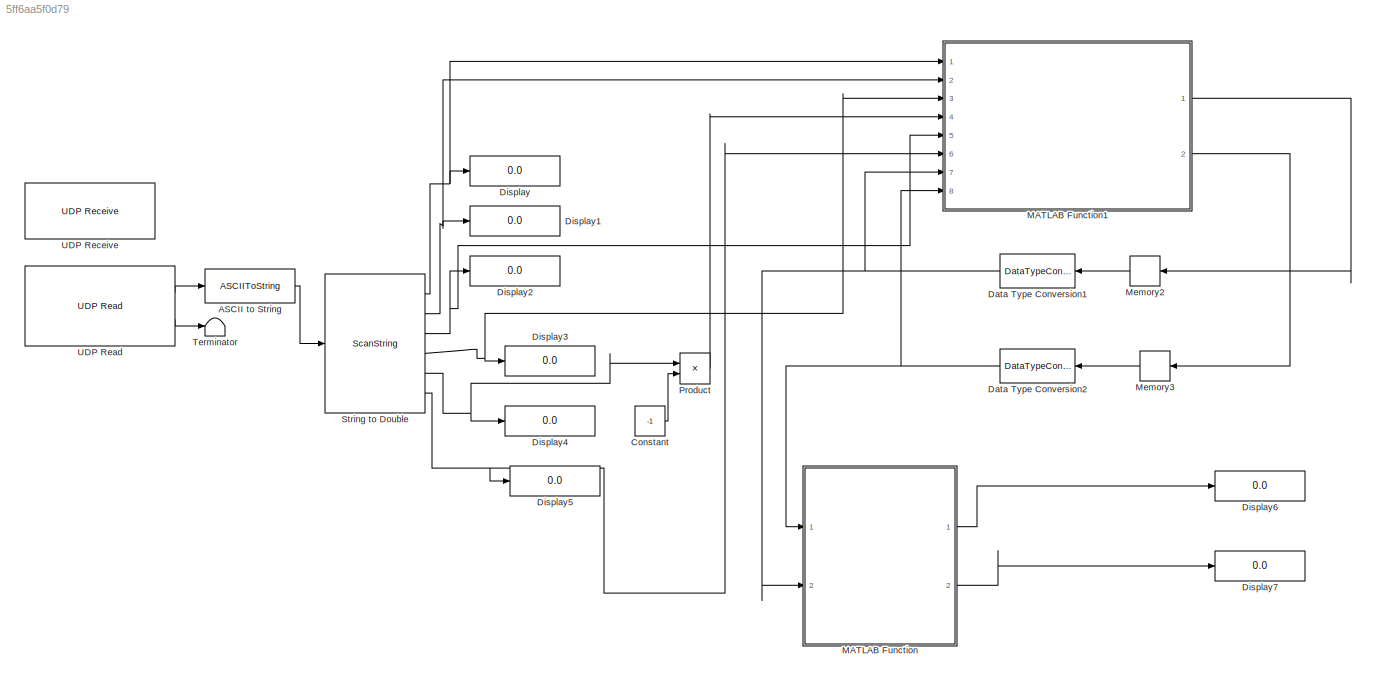
MODEL slx_5ff6aa5f0d79
KIND model
CONFIG AbsTol = auto
CONFIG EnableMultiTasking = off
CONFIG FixedStep = auto
CONFIG MaxStep = auto
CONFIG MinStep = auto
CONFIG RelTol = 1e-3
CONFIG SampleTimeConstraint = Unconstrained
CONFIG SolverName = VariableStepAuto
CONFIG StartTime = 0.0
CONFIG StopTime = inf
BLOCK [ASCIIToString] ASCII to String
BLOCK [Constant] Constant
  Value = -1
BLOCK [DataTypeConversion] Data Type Conversion1
  NameLocation = top
  RndMeth = Floor
  SaturateOnIntegerOverflow = off
BLOCK [DataTypeConversion] Data Type Conversion2
  NameLocation = top
  RndMeth = Floor
  SaturateOnIntegerOverflow = off
BLOCK [Display] Display
  Decimation = 1
  Ports = [1]
BLOCK [Display] Display1
  Decimation = 1
  Ports = [1]
BLOCK [Display] Display2
  Decimation = 1
  Ports = [1]
BLOCK [Display] Display3
  Decimation = 1
  Ports = [1]
BLOCK [Display] Display4
  Decimation = 1
  Ports = [1]
BLOCK [Display] Display5
  Decimation = 1
  Ports = [1]
BLOCK [Display] Display6
  Decimation = 1
  Ports = [1]
BLOCK [Display] Display7
  Decimation = 1
  Ports = [1]
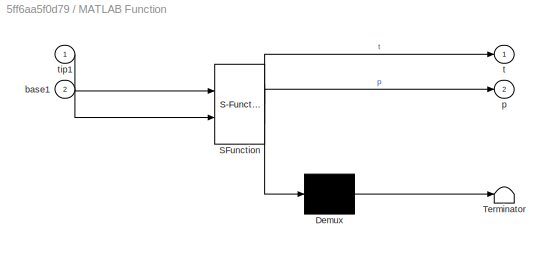
BLOCK [SubSystem] MATLAB Function
  ErrorFcn = Stateflow.Translate.translate
  PermitHierarchicalResolution = ExplicitOnly
  Ports = [2, 2]
  RequestExecContextInheritance = off
  SFBlockType = MATLAB Function
  TreatAsAtomicUnit = on
BLOCK [Demux] MATLAB Function/ Demux 
  Outputs = 1
  Ports = [1, 1]
BLOCK [S-Function] MATLAB Function/ SFunction 
  EnableBusSupport = on
  FunctionName = sf_sfun
  PortCounts = [2 3]
  Ports = [2, 3]
  SFcnIsStateOwnerBlock = off
  SFunctionDeploymentMode = off
  Tag = Stateflow S-Function 2
BLOCK [Terminator] MATLAB Function/ Terminator 
BLOCK [Inport] MATLAB Function/base1
  Port = 2
BLOCK [Outport] MATLAB Function/p
  Port = 2
BLOCK [Outport] MATLAB Function/t
BLOCK [Inport] MATLAB Function/tip1
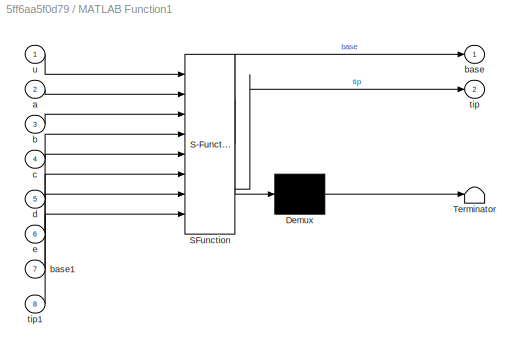
BLOCK [SubSystem] MATLAB Function1
  ErrorFcn = Stateflow.Translate.translate
  PermitHierarchicalResolution = ExplicitOnly
  Ports = [8, 2]
  RequestExecContextInheritance = off
  SFBlockType = MATLAB Function
  TreatAsAtomicUnit = on
BLOCK [Demux] MATLAB Function1/ Demux 
  Outputs = 1
  Ports = [1, 1]
BLOCK [S-Function] MATLAB Function1/ SFunction 
  EnableBusSupport = on
  FunctionName = sf_sfun
  PortCounts = [8 3]
  Ports = [8, 3]
  SFcnIsStateOwnerBlock = off
  SFunctionDeploymentMode = off
  Tag = Stateflow S-Function 1
BLOCK [Terminator] MATLAB Function1/ Terminator 
BLOCK [Inport] MATLAB Function1/a
  Port = 2
BLOCK [Inport] MATLAB Function1/b
  Port = 3
BLOCK [Outport] MATLAB Function1/base
BLOCK [Inport] MATLAB Function1/base1
  Port = 7
BLOCK [Inport] MATLAB Function1/c
  Port = 4
BLOCK [Inport] MATLAB Function1/d
  Port = 5
BLOCK [Inport] MATLAB Function1/e
  Port = 6
BLOCK [Outport] MATLAB Function1/tip
  Port = 2
BLOCK [Inport] MATLAB Function1/tip1
  Port = 8
BLOCK [Inport] MATLAB Function1/u
BLOCK [Memory] Memory2
  InheritSampleTime = on
  InitialCondition = [0.0,0,0,0,0,1]
  NameLocation = top
BLOCK [Memory] Memory3
  InheritSampleTime = on
  InitialCondition = [1.0,0,0,0,0,1]
  NameLocation = top
BLOCK [Product] Product
  Ports = [2, 1]
BLOCK [ScanString] String to Double
  Format = "%f %f %f %f %f %f"
  Ports = [1, 6]
BLOCK [Terminator] Terminator
BLOCK [Reference] UDP Read  REF=hostiolib/UDP Read
  Ports = [0, 2]
  SourceBlock = hostiolib/UDP Read
  SourceProductBaseCode = HW
  SourceType = UDP Read
BLOCK [Reference] UDP Receive  REF=instrumentlib/UDP Receive
  Commented = on
  Ports = [0, 1]
  SourceBlock = instrumentlib/UDP Receive
  SourceProductBaseCode = IC
  SourceType = UDP Receive
LINE ASCII to String:1 -> String to Double:1
LINE Constant:1 -> Product:2
NET Data Type Conversion1:1 -> MATLAB Function1:7, MATLAB Function:2
NET Data Type Conversion2:1 -> MATLAB Function1:8, MATLAB Function:1
LINE MATLAB Function1:1 -> Memory2:1
LINE MATLAB Function1:2 -> Memory3:1
LINE MATLAB Function:1 -> Display6:1
LINE MATLAB Function:2 -> Display7:1
LINE Memory2:1 -> Data Type Conversion1:1
LINE Memory3:1 -> Data Type Conversion2:1
LINE Product:1 -> MATLAB Function1:4
NET String to Double:1 -> Display:1, MATLAB Function1:1
NET String to Double:2 -> Display1:1, MATLAB Function1:2
NET String to Double:3 -> Display2:1, MATLAB Function1:5
NET String to Double:4 -> Display3:1, MATLAB Function1:3
NET String to Double:5 -> Display4:1, Product:1
NET String to Double:6 -> Display5:1, MATLAB Function1:6
LINE UDP Read:1 -> ASCII to String:1
LINE UDP Read:2 -> Terminator:1
note: NET lines group one-source signal fan-out (src -> all destinations, sorted); 1:1 wires keep LINE
CHART MATLAB Function1 states=1 transitions=1
  STATE_LABEL 'eML_blk_kernel()'
  STATE_LABEL 'SCRIPT:\nfunction [base,tip]= fcn(u,a,b,c,d,e,base1,tip1)\nif u==0.0\n    %base1=[double(u),double(a),double(b),double(c),double(d),double(e)];\n    base1(1)=double(u);\n    base1(2)=double(a);\n    base1(3)=double(b);\n    base1(4)=double(c);\n    base1(5)=double(d);\n    base1(6)=double(e);\nelseif u==1.0\n    %tip1=[double(u),double(a),double(b),double(c),double(d),double(e)];\n    tip1(1)=double(u);\n    t...<+144ch>'
CHART MATLAB Function states=1 transitions=1
  STATE_LABEL 'eML_blk_kernel()'
  STATE_LABEL 'SCRIPT:\nfunction [t,p]= fcn(tip1,base1)\n\nbase_start=[0,0,0,1];\ntip_start=[0,0,0,1];\n\ntip=[tip1(3),tip1(4),tip1(5),tip1(6)];\nbase=[base1(3),base1(4),base1(5),base1(6)];\n\ntip_relative_base=quatmultiply(quatmultiply(tip,quatinv(tip_start)),quatinv(quatmultiply(base,quatinv(base_start))));\n\nrotMat = quat2tform(tip_relative_base);\nphi=acos(rotMat(3,3));\n\n%optimizing\nf=@(x)optfun(x,phi);\noptAngle=fminse...<+488ch>'
CHART  states=0 transitions=0
CHART  states=0 transitions=0
